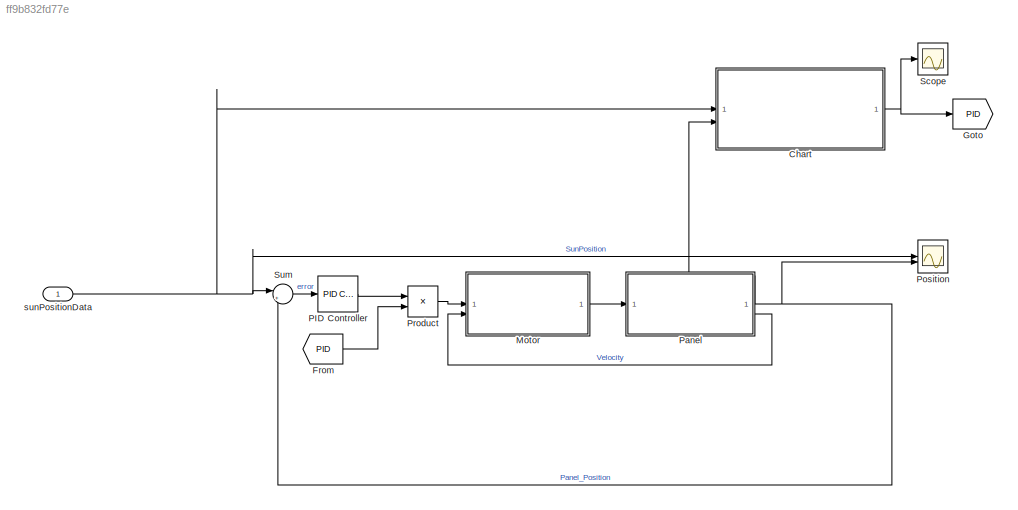
MODEL slx_ff9b832fd77e
KIND model
CONFIG AbsTol = auto
CONFIG EnableMultiTasking = off
CONFIG FixedStep = auto
CONFIG MaxStep = auto
CONFIG MinStep = auto
CONFIG RelTol = 1e-3
CONFIG SampleTimeConstraint = Unconstrained
CONFIG SolverName = VariableStepAuto
CONFIG StartTime = 0.0
CONFIG StopTime = 24*60*60
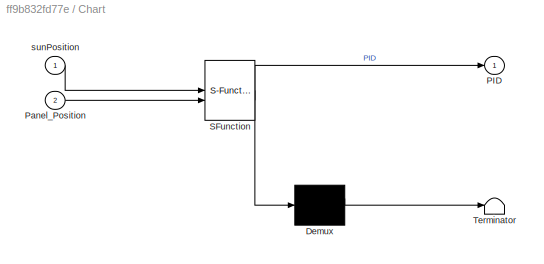
BLOCK [SubSystem] Chart
  ErrorFcn = Stateflow.Translate.translate
  PermitHierarchicalResolution = ExplicitOnly
  SFBlockType = Chart
  TreatAsAtomicUnit = on
BLOCK [Demux] Chart/ Demux 
  Outputs = 1
BLOCK [S-Function] Chart/ SFunction 
  EnableBusSupport = on
  FunctionName = sf_sfun
  PortCounts = [2 2]
  SFcnIsStateOwnerBlock = off
  SFunctionDeploymentMode = off
  Tag = Stateflow S-Function 3
BLOCK [Terminator] Chart/ Terminator 
BLOCK [Outport] Chart/PID
BLOCK [Inport] Chart/Panel_Position
  Port = 2
BLOCK [Inport] Chart/sunPosition
BLOCK [From] From
  GotoTag = PID
BLOCK [Goto] Goto
  GotoTag = PID
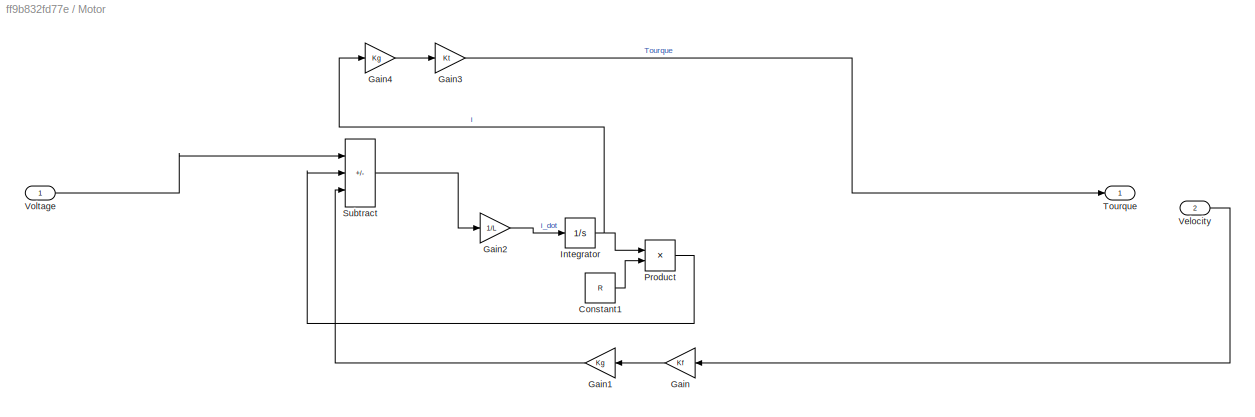
BLOCK [SubSystem] Motor
BLOCK [Constant] Motor/Constant1
  Value = R
BLOCK [Gain] Motor/Gain
  Gain = Kf
  NameLocation = top
BLOCK [Gain] Motor/Gain1
  Gain = Kg
  NameLocation = top
BLOCK [Gain] Motor/Gain2
  Gain = 1/L
BLOCK [Gain] Motor/Gain3
  Gain = Kt
BLOCK [Gain] Motor/Gain4
  Gain = Kg
BLOCK [Integrator] Motor/Integrator
BLOCK [Product] Motor/Product
BLOCK [Sum] Motor/Subtract
  IconShape = rectangular
  Inputs = +--
BLOCK [Outport] Motor/Tourque
BLOCK [Inport] Motor/Velocity
  Port = 2
BLOCK [Inport] Motor/Voltage
BLOCK [Reference] PID Controller  REF=slpidlib/PID Controller
  SourceBlock = slpidlib/PID Controller
  SourceType = PID 1dof
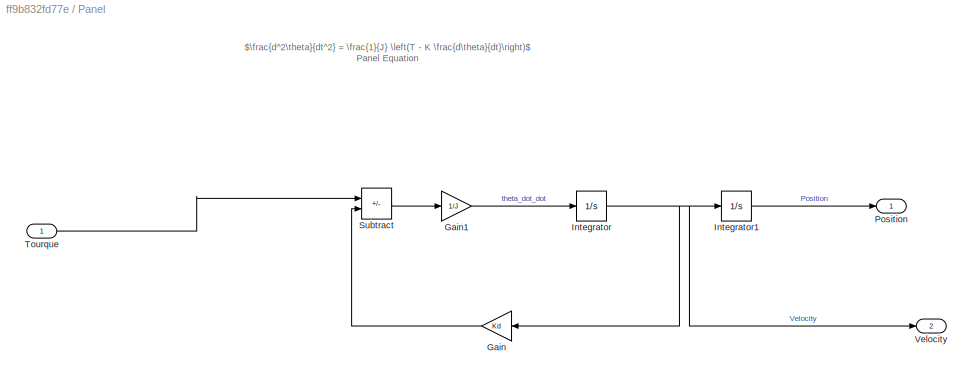
BLOCK [SubSystem] Panel
BLOCK [Gain] Panel/Gain
  Gain = Kd
  NameLocation = top
BLOCK [Gain] Panel/Gain1
  Gain = 1/J
BLOCK [Integrator] Panel/Integrator
BLOCK [Integrator] Panel/Integrator1
BLOCK [Outport] Panel/Position
BLOCK [Sum] Panel/Subtract
  IconShape = rectangular
  Inputs = +-
BLOCK [Inport] Panel/Tourque
BLOCK [Outport] Panel/Velocity
  Port = 2
BLOCK [Scope] Position
  Floating = off
  NumInputPorts = 2
  ScopeSpecificationString = Simulink.scopes.TimeScopeBlockCfg('CurrentConfiguration', extmgr.ConfigurationSet(extmgr.Configuration('Core','General UI',true),extmgr.Configuration('Core','Source UI',true),extmgr.Configuration('Sources','WiredSimulink',true),extmgr.Configuration('Visuals','Time Domain',true,'SerializedDisplays',{struct('MinYLimReal','0.00000','MaxYLimReal','5.70103','YLabelReal','','MinYLimMag','0.00000','MaxYL...<+1645ch>
BLOCK [Product] Product
BLOCK [Scope] Scope
  Floating = off
  NumInputPorts = 1
  ScopeSpecificationString = Simulink.scopes.TimeScopeBlockCfg('CurrentConfiguration', extmgr.ConfigurationSet(extmgr.Configuration('Core','General UI',true),extmgr.Configuration('Core','Source UI',true),extmgr.Configuration('Sources','WiredSimulink',true,'DataLoggingVariableName','ScopeData1'),extmgr.Configuration('Visuals','Time Domain',true,'SerializedDisplays',{struct('MinYLimReal','0.9','MaxYLimReal','1.1','YLabelReal','...<+1374ch>
BLOCK [Sum] Sum
  Inputs = |+-
BLOCK [Inport] sunPositionData
ANNOTATION Panel: $\frac{d^2\theta}{dt^2} = \frac{1}{J} \left(T - K \frac{d\theta}{dt}\right)$ Panel Equation
NET Chart:1 -> Goto:1, Scope:1
LINE From:1 -> Product:2
LINE Motor/Constant1:1 -> Motor/Product:2
LINE Motor/Gain1:1 -> Motor/Subtract:3
LINE Motor/Gain2:1 -> Motor/Integrator:1
LINE Motor/Gain3:1 -> Motor/Tourque:1
LINE Motor/Gain4:1 -> Motor/Gain3:1
LINE Motor/Gain:1 -> Motor/Gain1:1
NET Motor/Integrator:1 -> Motor/Gain4:1, Motor/Product:1
LINE Motor/Product:1 -> Motor/Subtract:2
LINE Motor/Subtract:1 -> Motor/Gain2:1
LINE Motor/Velocity:1 -> Motor/Gain:1
LINE Motor/Voltage:1 -> Motor/Subtract:1
LINE Motor:1 -> Panel:1
LINE PID Controller:1 -> Product:1
LINE Panel/Gain1:1 -> Panel/Integrator:1
LINE Panel/Gain:1 -> Panel/Subtract:2
LINE Panel/Integrator1:1 -> Panel/Position:1
NET Panel/Integrator:1 -> Panel/Gain:1, Panel/Integrator1:1, Panel/Velocity:1
LINE Panel/Subtract:1 -> Panel/Gain1:1
LINE Panel/Tourque:1 -> Panel/Subtract:1
NET Panel:1 -> Chart:2, Position:2, Sum:2
LINE Panel:2 -> Motor:2
LINE Product:1 -> Motor:1
LINE Sum:1 -> PID Controller:1
NET sunPositionData:1 -> Chart:1, Position:1, Sum:1
note: NET lines group one-source signal fan-out (src -> all destinations, sorted); 1:1 wires keep LINE
CHART Chart states=3 transitions=5
  STATE_LABEL 'Tracking\nentry:\nPID=1'
  STATE_LABEL 'Stop\nentry:\nPID=0\n'
  STATE_LABEL 'Return\nentry:\nPID=-1\n'
CHART  states=0 transitions=0
